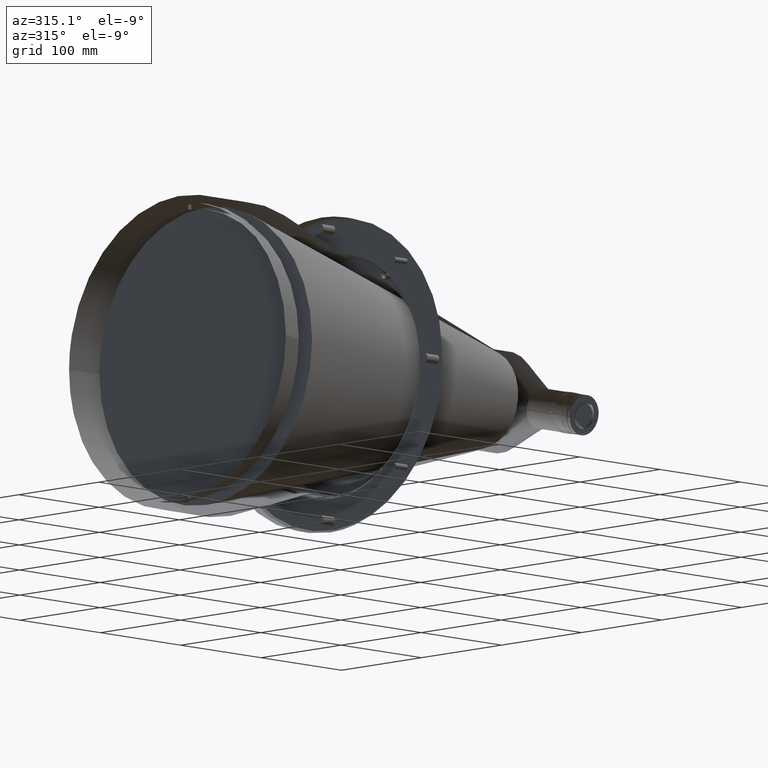
[diagram: clean part render]
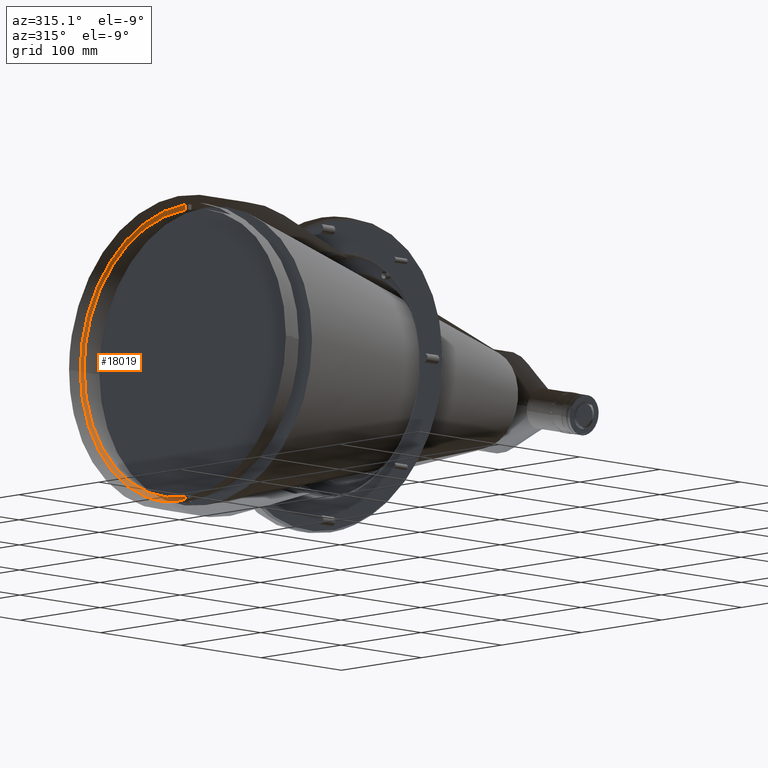
[diagram: same view with one face highlighted and labeled with its STEP entity id]
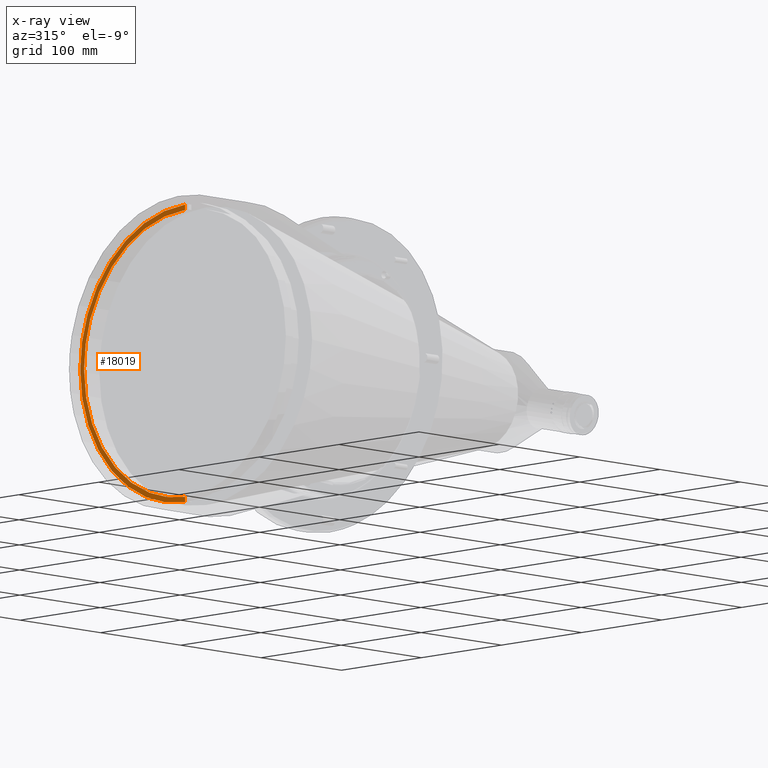
[diagram: x-ray of the same camera — body ghosted, the highlighted face saturated]
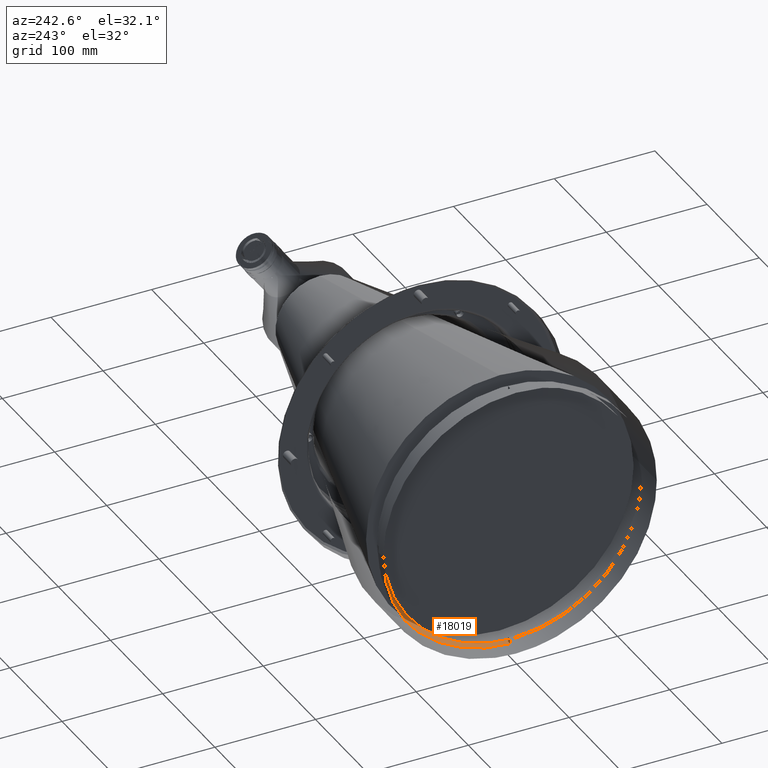
[diagram: same view with one face highlighted and labeled with its STEP entity id]
A machine part, auxiliary view. The second image highlights one B-rep face of the part: STEP entity #18019.
The next image is the same camera in x-ray: the body ghosted, the highlighted face saturated — about 0% of this face is hidden behind the body in this view.
A second angle (auxiliary view) of the same face is appended — the face is thin or edge-on in the first view.
In plain terms, the highlighted planar face has unit normal (1, 0, 0).
Its self-contained STEP definition (entity closure, byte-faithful):
#161 = CARTESIAN_POINT ( 'NONE',  ( 8.836156112999997703, 120.1138218044135044, -44.71605777039887641 ) ) ;
#898 = VERTEX_POINT ( 'NONE', #7549 ) ;
#1176 = CARTESIAN_POINT ( 'NONE',  ( 8.836156112999999479, 111.3274169231469557, 63.50639536428374754 ) ) ;
#1396 = CARTESIAN_POINT ( 'NONE',  ( 8.836156105464528565, 119.7072400091444564, -58.36783379179902909 ) ) ;
#3781 = CARTESIAN_POINT ( 'NONE',  ( 8.836156112700059850, 2.000000000166505032, -128.0843862455514000 ) ) ;
#3789 = B_SPLINE_CURVE_WITH_KNOTS ( 'NONE', 3,
 ( #27143, #35722, #47908, #4569, #39097, #35218, #12337, #31311, #161, #43506, #27912, #27402, #4300, #36242, #40120, #43763, #15951, #43249, #7690, #23740, #20117, #16469, #32341, #35980, #31825, #23479, #8201, #47652, #16220, #28186, #8465, #48169, #39350, #3781 ),
 .UNSPECIFIED., .F., .F.,
 ( 4, 2, 2, 2, 2, 2, 2, 2, 2, 2, 2, 2, 2, 2, 2, 2, 4 ),
 ( 0.5000000000000000000, 0.5312500000000000000, 0.5624999999999998890, 0.5937499999999998890, 0.6249999999999997780, 0.6562499999999997780, 0.6874999999999998890, 0.7187499999999998890, 0.7500000000000000000, 0.7812500000000000000, 0.8125000000000000000, 0.8437500000000000000, 0.8750000000000000000, 0.9062500000000000000, 0.9375000000000000000, 0.9687500000000000000, 1.000000000000000000 ),
 .UNSPECIFIED. ) ;
#3850 = CARTESIAN_POINT ( 'NONE',  ( 8.836156111614407394, 10.61397261251318902, 132.7553046681557305 ) ) ;
#4110 = CARTESIAN_POINT ( 'NONE',  ( 8.836156108539467979, 115.6629505437699805, 66.02052107991447372 ) ) ;
#4300 = CARTESIAN_POINT ( 'NONE',  ( 8.836156112999997703, 109.2133187717853531, -67.07687391194222926 ) ) ;
#4563 = CARTESIAN_POINT ( 'NONE',  ( 8.836156112999999479, 46.58592083179871679, 119.4010384847291562 ) ) ;
#4569 = CARTESIAN_POINT ( 'NONE',  ( 8.836156112999997703, 127.0923075275102718, -16.56531572220743698 ) ) ;
#4817 = CARTESIAN_POINT ( 'NONE',  ( 8.836156112999995926, 124.8847906987024317, 28.82091364108457299 ) ) ;
#5149 = CARTESIAN_POINT ( 'NONE',  ( 8.836156107309495411, 132.0597026617583651, 17.22969137976601317 ) ) ;
#5186 = AXIS2_PLACEMENT_3D ( 'NONE', #50530, #30033, #30290 ) ;
#5289 = CARTESIAN_POINT ( 'NONE',  ( 8.836156102184597572, 10.61397261306268547, -132.7553046681116484 ) ) ;
#5330 = CARTESIAN_POINT ( 'NONE',  ( 8.836156112999997703, 115.2073890051284479, 56.16156903320319316 ) ) ;
#5550 = CARTESIAN_POINT ( 'NONE',  ( 8.836156104644548037, 100.7246354247029956, -87.12735018761134143 ) ) ;
#5921 = CARTESIAN_POINT ( 'NONE',  ( 8.836156107104496726, 132.8999999999821569, 8.614948180850765524 ) ) ;
#5922 = PLANE ( 'NONE',  #5186 ) ;
#6315 = CARTESIAN_POINT ( 'NONE',  ( 8.836156104029559089, 81.98911147538430555, -104.9495732798899752 ) ) ;
#7549 = CARTESIAN_POINT ( 'NONE',  ( 8.836156112666939677, 1.999999999787380300, 132.8849502392215811 ) ) ;
#7690 = CARTESIAN_POINT ( 'NONE',  ( 8.836156112999999479, 85.31960071182186311, -95.64215464606317596 ) ) ;
#8010 = CARTESIAN_POINT ( 'NONE',  ( 8.836156109769442324, 81.98911147494990814, 104.9495732802294157 ) ) ;
#8201 = CARTESIAN_POINT ( 'NONE',  ( 8.836156112999999479, 42.69639612192300859, -120.8464884436911717 ) ) ;
#8465 = CARTESIAN_POINT ( 'NONE',  ( 8.836156112999999479, 18.54772607206551172, -126.8181345709483452 ) ) ;
#8721 = CARTESIAN_POINT ( 'NONE',  ( 8.836156113000001255, 126.4894686390297665, 20.67071941346537045 ) ) ;
#9478 = CARTESIAN_POINT ( 'NONE',  ( 8.836156113000001255, 88.37090265300328440, 92.83016522255840641 ) ) ;
#9694 = CARTESIAN_POINT ( 'NONE',  ( 8.836156103619567048, 67.75364604588980910, -114.6563159169274400 ) ) ;
#11587 = CARTESIAN_POINT ( 'NONE',  ( 8.836156106489509554, 132.0597026618296184, -17.22969137921929317 ) ) ;
#11890 = CARTESIAN_POINT ( 'NONE',  ( 8.836156110794423313, 44.31977393173227142, 125.5881561724439024 ) ) ;
#12337 = CARTESIAN_POINT ( 'NONE',  ( 8.836156113000001255, 123.8863852141382864, -32.84843328938506346 ) ) ;
#12580 = CARTESIAN_POINT ( 'NONE',  ( 8.836156113000001255, 121.4983691999462252, 40.80443962035504057 ) ) ;
#12836 = CARTESIAN_POINT ( 'NONE',  ( 8.836156112999999479, 127.0922752578290726, 16.56531257811466062 ) ) ;
#13611 = CARTESIAN_POINT ( 'NONE',  ( 8.836156112999999479, 57.95341827495596476, 114.3164787824867261 ) ) ;
#13739 = B_SPLINE_CURVE_WITH_KNOTS ( 'NONE', 3,
 ( #37660, #28834, #21293, #17901 ),
 .UNSPECIFIED., .F., .F.,
 ( 4, 4 ),
 ( 0.000000000000000000, 1.000000000000000000 ),
 .UNSPECIFIED. ) ;
#14908 = B_SPLINE_CURVE_WITH_KNOTS ( 'NONE', 3,
 ( #31728, #35376, #15608, #47304 ),
 .UNSPECIFIED., .F., .F.,
 ( 4, 4 ),
 ( 0.000000000000000000, 1.000000000000000000 ),
 .UNSPECIFIED. ) ;
#15522 = CARTESIAN_POINT ( 'NONE',  ( 8.836156112666939677, 1.999999999787380300, 132.8849502392215811 ) ) ;
#15608 = CARTESIAN_POINT ( 'NONE',  ( 8.836156112999999479, 2.000000000000000000, -129.6845742434339854 ) ) ;
#15951 = CARTESIAN_POINT ( 'NONE',  ( 8.836156112999995926, 94.19856786187588682, -86.91079233193551090 ) ) ;
#16220 = CARTESIAN_POINT ( 'NONE',  ( 8.836156112999999479, 30.76720230665043587, -124.4195936061508689 ) ) ;
#16241 = ORIENTED_EDGE ( 'NONE', *, *, #40378, .F. ) ;
#16463 = CARTESIAN_POINT ( 'NONE',  ( 8.836156112999999479, 85.31962149904737203, 95.64217952813503132 ) ) ;
#16469 = CARTESIAN_POINT ( 'NONE',  ( 8.836156112999997703, 68.77384234833816379, -108.1527758602858285 ) ) ;
#16758 = EDGE_CURVE ( 'NONE', #41505, #36069, #36658, .T. ) ;
#17321 = EDGE_CURVE ( 'NONE', #898, #49140, #34717, .T. ) ;
#17719 = CARTESIAN_POINT ( 'NONE',  ( 8.836156105259533433, 115.6629505440432126, -66.02052107943558212 ) ) ;
#17901 = CARTESIAN_POINT ( 'NONE',  ( 8.836156109723750873, 2.000000000026080027, 128.0843862455027988 ) ) ;
#17970 = CARTESIAN_POINT ( 'NONE',  ( 8.836156103414570140, 60.16268750201788151, -118.8153119959230111 ) ) ;
#18019 = ADVANCED_FACE ( 'NONE', ( #25623 ), #5922, .T. ) ;
#19930 = CARTESIAN_POINT ( 'NONE',  ( 8.836156108334474624, 119.7072400089028861, 58.36783379229463264 ) ) ;
#20117 = CARTESIAN_POINT ( 'NONE',  ( 8.836156112999999479, 75.63519978355442674, -103.4706362437371752 ) ) ;
#20371 = CARTESIAN_POINT ( 'NONE',  ( 8.836156113000003032, 30.76720906988946425, 124.4196253156259502 ) ) ;
#20633 = CARTESIAN_POINT ( 'NONE',  ( 8.836156112999999479, 6.152991717275577699, 128.0195385023712333 ) ) ;
#20722 = ORIENTED_EDGE ( 'NONE', *, *, #17321, .F. ) ;
#21140 = CARTESIAN_POINT ( 'NONE',  ( 8.836156112999997703, 123.8864162674686042, 32.84844261184571934 ) ) ;
#21215 = CARTESIAN_POINT ( 'NONE',  ( 8.836156107719485675, 128.7301123781571448, 34.13481359640093871 ) ) ;
#21293 = CARTESIAN_POINT ( 'NONE',  ( 8.836156112999999479, 2.000000000000001776, 129.6845742432993234 ) ) ;
#21360 = CARTESIAN_POINT ( 'NONE',  ( 8.836156103004579876, 44.31977393225209738, -125.5881561722603550 ) ) ;
#21398 = CARTESIAN_POINT ( 'NONE',  ( 8.836156109723750873, 2.000000000026080027, 128.0843862455027988 ) ) ;
#21836 = B_SPLINE_CURVE_WITH_KNOTS ( 'NONE', 3,
 ( #31326, #47163, #11587, #37479, #48889, #1396, #17719, #33322, #5550, #41622, #6315, #9694, #17970, #21360, #33589, #37216, #5289, #49402 ),
 .UNSPECIFIED., .F., .F.,
 ( 4, 2, 2, 2, 2, 2, 2, 2, 4 ),
 ( 0.5000000000000000000, 0.5625000000000000000, 0.6250000000000001110, 0.6875000000000001110, 0.7500000000000000000, 0.8125000000000000000, 0.8750000000000000000, 0.9375000000000000000, 1.000000000000000000 ),
 .UNSPECIFIED. ) ;
#23479 = CARTESIAN_POINT ( 'NONE',  ( 8.836156113000001255, 46.58593359018700397, -119.4010682915978947 ) ) ;
#23740 = CARTESIAN_POINT ( 'NONE',  ( 8.836156113000001255, 78.94501226006400429, -100.9680610732538639 ) ) ;
#24070 = CARTESIAN_POINT ( 'NONE',  ( 8.836156109154460481, 100.7246354243423951, 87.12735018802835896 ) ) ;
#24358 = CARTESIAN_POINT ( 'NONE',  ( 8.836156109949749649, 132.9000000000000057, 2.752476302436690503E-10 ) ) ;
#25027 = CARTESIAN_POINT ( 'NONE',  ( 8.836156113000001255, 109.2133458350544544, 67.07689176701973111 ) ) ;
#25623 = FACE_OUTER_BOUND ( 'NONE', #49233, .T. ) ;
#26425 = CARTESIAN_POINT ( 'NONE',  ( 8.836156109393991542, 1.999999999970870190, -132.8849502392511965 ) ) ;
#26625 = ORIENTED_EDGE ( 'NONE', *, *, #16758, .T. ) ;
#27143 = CARTESIAN_POINT ( 'NONE',  ( 8.836156110228545302, 128.0999999999999943, 2.105175697687082743E-10 ) ) ;
#27402 = CARTESIAN_POINT ( 'NONE',  ( 8.836156113000001255, 111.3274455918689085, -63.50641050798187592 ) ) ;
#27723 = CARTESIAN_POINT ( 'NONE',  ( 8.836156110384431273, 60.16268750152606515, 118.8153119961721700 ) ) ;
#27912 = CARTESIAN_POINT ( 'NONE',  ( 8.836156113000001255, 115.2073603368002779, -56.16155388876123311 ) ) ;
#28186 = CARTESIAN_POINT ( 'NONE',  ( 8.836156112999997703, 22.64305501455776692, -126.1513233273241781 ) ) ;
#28433 = CARTESIAN_POINT ( 'NONE',  ( 8.836156113000003032, 120.1138518069704304, 44.71607006120231631 ) ) ;
#28686 = CARTESIAN_POINT ( 'NONE',  ( 8.836156112999997703, 127.8984355948464895, 8.297860567058103598 ) ) ;
#28834 = CARTESIAN_POINT ( 'NONE',  ( 8.836156112999999479, 2.000000000000001776, 131.2847622413066517 ) ) ;
#28939 = CARTESIAN_POINT ( 'NONE',  ( 8.836156112999999479, 34.77864315044219268, 123.3584289442193267 ) ) ;
#30033 = DIRECTION ( 'NONE',  ( 1.000000000000000000, 0.000000000000000000, 0.000000000000000000 ) ) ;
#30290 = DIRECTION ( 'NONE',  ( 0.000000000000000000, 1.000000000000000000, 0.000000000000000000 ) ) ;
#30388 = CARTESIAN_POINT ( 'NONE',  ( 8.836156112700059850, 2.000000000166505032, -128.0843862455514000 ) ) ;
#31311 = CARTESIAN_POINT ( 'NONE',  ( 8.836156112999999479, 121.4984002535189376, -40.80444894200902439 ) ) ;
#31326 = CARTESIAN_POINT ( 'NONE',  ( 8.836156109949749649, 132.9000000000000057, 2.752476302436690503E-10 ) ) ;
#31500 = ORIENTED_EDGE ( 'NONE', *, *, #49739, .F. ) ;
#31728 = CARTESIAN_POINT ( 'NONE',  ( 8.836156109393991542, 1.999999999970870190, -132.8849502392511965 ) ) ;
#31825 = CARTESIAN_POINT ( 'NONE',  ( 8.836156112999999479, 54.22252757324381633, -116.1325687071572190 ) ) ;
#32335 = CARTESIAN_POINT ( 'NONE',  ( 8.836156113000001255, 94.19859096507953211, 86.91081507975447096 ) ) ;
#32341 = CARTESIAN_POINT ( 'NONE',  ( 8.836156112999999479, 65.23678771987479763, -110.3223347241840457 ) ) ;
#32547 = VERTEX_POINT ( 'NONE', #30388 ) ;
#32586 = CARTESIAN_POINT ( 'NONE',  ( 8.836156112999999479, 96.96257516390807041, 83.81595927116295286 ) ) ;
#32759 = CARTESIAN_POINT ( 'NONE',  ( 8.836156109723750873, 2.000000000026080027, 128.0843862455027988 ) ) ;
#32781 = ORIENTED_EDGE ( 'NONE', *, *, #34399, .T. ) ;
#32840 = CARTESIAN_POINT ( 'NONE',  ( 8.836156113000001255, 75.63521805767976502, 103.4706630257350071 ) ) ;
#33322 = CARTESIAN_POINT ( 'NONE',  ( 8.836156104849541393, 106.1715353337879151, -80.40045035334195234 ) ) ;
#33365 = CARTESIAN_POINT ( 'NONE',  ( 8.836156113000001255, 42.69640592727932216, 120.8465193479974857 ) ) ;
#33589 = CARTESIAN_POINT ( 'NONE',  ( 8.836156102799581191, 36.06819586819634793, -128.2018431184490055 ) ) ;
#34399 = EDGE_CURVE ( 'NONE', #36069, #32547, #3789, .T. ) ;
#34717 = B_SPLINE_CURVE_WITH_KNOTS ( 'NONE', 3,
 ( #15522, #3850, #47462, #35536, #11890, #27723, #43575, #8010, #43829, #24070, #39675, #4110, #19930, #35791, #21215, #5149, #5921, #36558 ),
 .UNSPECIFIED., .F., .F.,
 ( 4, 2, 2, 2, 2, 2, 2, 2, 4 ),
 ( 0.000000000000000000, 0.06250000000000002776, 0.1250000000000000555, 0.1875000000000000278, 0.2500000000000000000, 0.3124999999999999445, 0.3749999999999999445, 0.4374999999999999445, 0.5000000000000000000 ),
 .UNSPECIFIED. ) ;
#35218 = CARTESIAN_POINT ( 'NONE',  ( 8.836156112999999479, 124.8848225108076804, -28.82091990342102505 ) ) ;
#35376 = CARTESIAN_POINT ( 'NONE',  ( 8.836156112999999479, 2.000000000000000000, -131.2847622414230102 ) ) ;
#35536 = CARTESIAN_POINT ( 'NONE',  ( 8.836156110999420221, 36.06819586766569330, 128.2018431185984753 ) ) ;
#35722 = CARTESIAN_POINT ( 'NONE',  ( 8.836156113000001255, 128.1000162113301428, -4.153331709466755228 ) ) ;
#35791 = CARTESIAN_POINT ( 'NONE',  ( 8.836156107924484360, 126.2408986561163431, 42.42479037838813838 ) ) ;
#35980 = CARTESIAN_POINT ( 'NONE',  ( 8.836156113000001255, 57.95343386539209973, -114.3165072105380347 ) ) ;
#36069 = VERTEX_POINT ( 'NONE', #39141 ) ;
#36242 = CARTESIAN_POINT ( 'NONE',  ( 8.836156113000003032, 104.6389289954170891, -74.01053206362684023 ) ) ;
#36489 = CARTESIAN_POINT ( 'NONE',  ( 8.836156112999999479, 68.77382407351625204, 108.1527490787626533 ) ) ;
#36558 = CARTESIAN_POINT ( 'NONE',  ( 8.836156109949749649, 132.9000000000000057, 2.752476302436690503E-10 ) ) ;
#36658 = B_SPLINE_CURVE_WITH_KNOTS ( 'NONE', 3,
 ( #21398, #20633, #48930, #40374, #37258, #20371, #28939, #33365, #4563, #49184, #13611, #45051, #36489, #32840, #44021, #16463, #9478, #32335, #32586, #48161, #48417, #25027, #1176, #5330, #36741, #28433, #12580, #21140, #4817, #8721, #12836, #28686, #44545, #36993 ),
 .UNSPECIFIED., .F., .F.,
 ( 4, 2, 2, 2, 2, 2, 2, 2, 2, 2, 2, 2, 2, 2, 2, 2, 4 ),
 ( 0.000000000000000000, 0.03125000000000008327, 0.06250000000000015266, 0.09375000000000019429, 0.1250000000000002498, 0.1562500000000003053, 0.1875000000000003053, 0.2187500000000003053, 0.2500000000000002776, 0.2812500000000002776, 0.3125000000000003331, 0.3437500000000003331, 0.3750000000000003331, 0.4062500000000002220, 0.4375000000000001665, 0.4687500000000000555, 0.5000000000000000000 ),
 .UNSPECIFIED. ) ;
#36741 = CARTESIAN_POINT ( 'NONE',  ( 8.836156112999999479, 116.9649792438812170, 52.40276368159604203 ) ) ;
#36993 = CARTESIAN_POINT ( 'NONE',  ( 8.836156110228545302, 128.0999999999999943, 2.105175697687082743E-10 ) ) ;
#37216 = CARTESIAN_POINT ( 'NONE',  ( 8.836156102389592704, 19.21509470962264032, -131.7854600001617200 ) ) ;
#37258 = CARTESIAN_POINT ( 'NONE',  ( 8.836156112999999479, 22.64304825049425318, 126.1512916180240182 ) ) ;
#37479 = CARTESIAN_POINT ( 'NONE',  ( 8.836156106079515737, 128.7301123782984575, -34.13481359586799613 ) ) ;
#37660 = CARTESIAN_POINT ( 'NONE',  ( 8.836156112666939677, 1.999999999787380300, 132.8849502392215811 ) ) ;
#39097 = CARTESIAN_POINT ( 'NONE',  ( 8.836156112999999479, 126.4894368270874025, -20.67071315030303680 ) ) ;
#39141 = CARTESIAN_POINT ( 'NONE',  ( 8.836156110228545302, 128.0999999999999943, 2.105175697687082743E-10 ) ) ;
#39350 = CARTESIAN_POINT ( 'NONE',  ( 8.836156112999999479, 6.153325802950397438, -128.0195332857087180 ) ) ;
#39675 = CARTESIAN_POINT ( 'NONE',  ( 8.836156108949463572, 106.1715353334551963, 80.40045035378156513 ) ) ;
#40120 = CARTESIAN_POINT ( 'NONE',  ( 8.836156112999999479, 102.1882820390274702, -77.35897507661474037 ) ) ;
#40374 = CARTESIAN_POINT ( 'NONE',  ( 8.836156112999997703, 18.54756371821646965, 126.8181855956247688 ) ) ;
#40378 = EDGE_CURVE ( 'NONE', #49140, #46927, #21836, .T. ) ;
#40539 = EDGE_CURVE ( 'NONE', #898, #41505, #13739, .T. ) ;
#40620 = ORIENTED_EDGE ( 'NONE', *, *, #40539, .T. ) ;
#41505 = VERTEX_POINT ( 'NONE', #32759 ) ;
#41622 = CARTESIAN_POINT ( 'NONE',  ( 8.836156104234554221, 88.63327964633860745, -99.40205768135753317 ) ) ;
#43249 = CARTESIAN_POINT ( 'NONE',  ( 8.836156112999997703, 88.37092575679848494, -92.83018796977748366 ) ) ;
#43506 = CARTESIAN_POINT ( 'NONE',  ( 8.836156113000003032, 116.9650092467579157, -52.40277597162021550 ) ) ;
#43575 = CARTESIAN_POINT ( 'NONE',  ( 8.836156110179434364, 67.75364604541520919, 114.6563159172080049 ) ) ;
#43763 = CARTESIAN_POINT ( 'NONE',  ( 8.836156112999999479, 96.96260036649795211, -83.81597966853335890 ) ) ;
#43829 = CARTESIAN_POINT ( 'NONE',  ( 8.836156109564448968, 88.63327964592718899, 99.40205768172450007 ) ) ;
#44021 = CARTESIAN_POINT ( 'NONE',  ( 8.836156112999997703, 78.94499147219127622, 100.9680361917221489 ) ) ;
#44545 = CARTESIAN_POINT ( 'NONE',  ( 8.836156112999995926, 128.0999837886698174, 4.153331709887908119 ) ) ;
#45051 = CARTESIAN_POINT ( 'NONE',  ( 8.836156113000001255, 65.23680330957148499, 110.3223631526395536 ) ) ;
#46927 = VERTEX_POINT ( 'NONE', #26425 ) ;
#47163 = CARTESIAN_POINT ( 'NONE',  ( 8.836156106694508239, 132.9000000000178829, -8.614948180300551428 ) ) ;
#47304 = CARTESIAN_POINT ( 'NONE',  ( 8.836156112700059850, 2.000000000166505032, -128.0843862455514000 ) ) ;
#47462 = CARTESIAN_POINT ( 'NONE',  ( 8.836156111409410485, 19.21509470907714245, 131.7854600002413576 ) ) ;
#47652 = CARTESIAN_POINT ( 'NONE',  ( 8.836156112999999479, 34.77865295660200928, -123.3584598482718775 ) ) ;
#47908 = CARTESIAN_POINT ( 'NONE',  ( 8.836156112999999479, 127.8984033252470738, -8.297857422127009386 ) ) ;
#48161 = CARTESIAN_POINT ( 'NONE',  ( 8.836156113000001255, 102.1883072410870597, 77.35899547463920101 ) ) ;
#48169 = CARTESIAN_POINT ( 'NONE',  ( 8.836156112999999479, 10.29353617775791641, -127.7533123586657098 ) ) ;
#48417 = CARTESIAN_POINT ( 'NONE',  ( 8.836156113000001255, 104.6389019316836624, 74.01051420925163882 ) ) ;
#48889 = CARTESIAN_POINT ( 'NONE',  ( 8.836156105874522382, 126.2408986562919608, -42.42479037786547735 ) ) ;
#48930 = CARTESIAN_POINT ( 'NONE',  ( 8.836156112999999479, 10.29369853076914865, 127.7532613340828220 ) ) ;
#49140 = VERTEX_POINT ( 'NONE', #24358 ) ;
#49184 = CARTESIAN_POINT ( 'NONE',  ( 8.836156113000003032, 54.22254033085698666, 116.1325985143563457 ) ) ;
#49233 = EDGE_LOOP ( 'NONE', ( #20722, #40620, #26625, #32781, #31500, #16241 ) ) ;
#49402 = CARTESIAN_POINT ( 'NONE',  ( 8.836156109393991542, 1.999999999970870190, -132.8849502392511965 ) ) ;
#49739 = EDGE_CURVE ( 'NONE', #46927, #32547, #14908, .T. ) ;
#50530 = CARTESIAN_POINT ( 'NONE',  ( 8.836156112999999479, 67.84270000000000778, 134.4795696419999729 ) ) ;